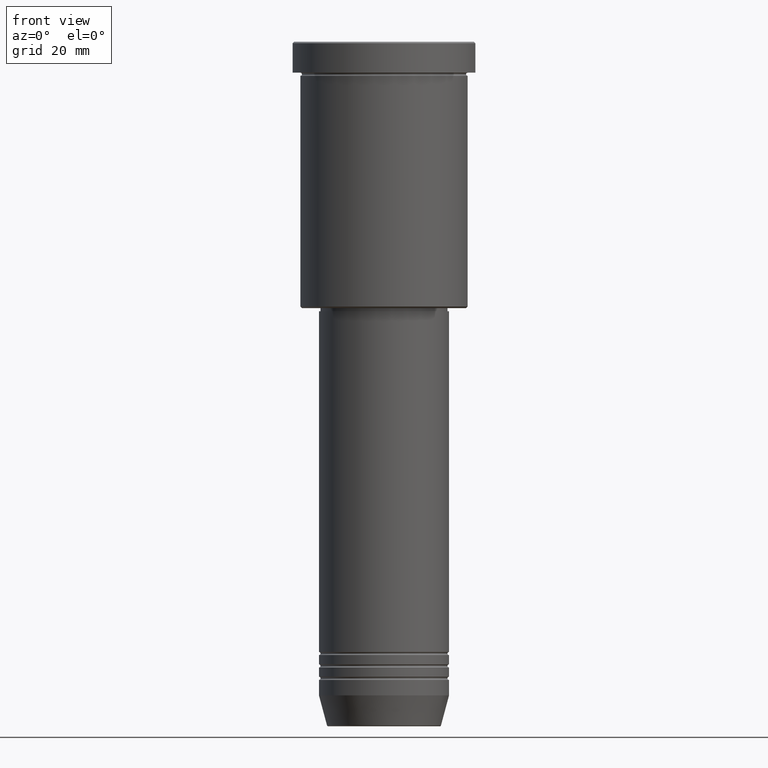
[diagram: clean part render]
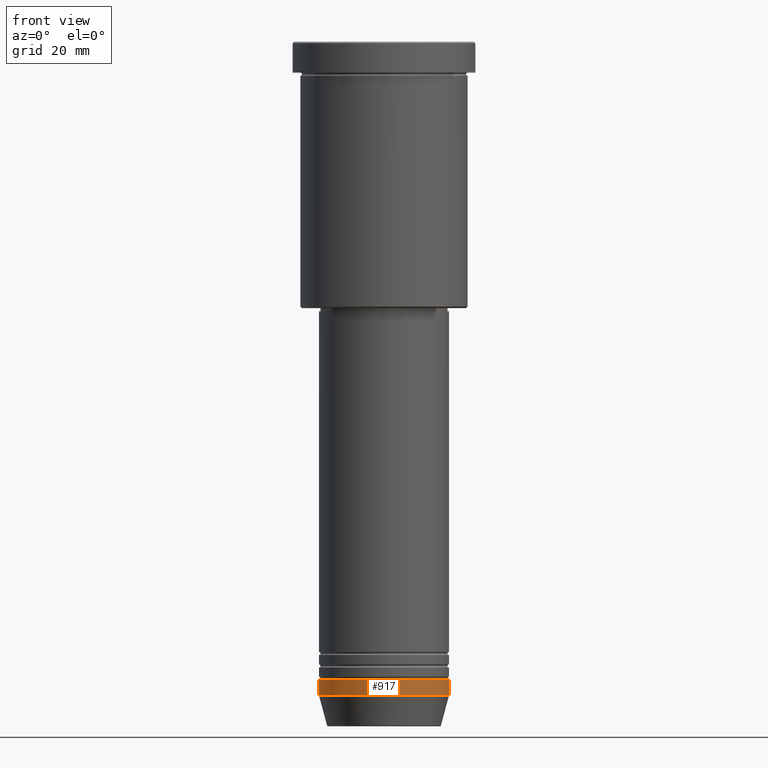
[diagram: same view with one face highlighted and labeled with its STEP entity id]
A machine part, front view. The second image highlights one B-rep face of the part: STEP entity #917.
In plain terms, the highlighted cylindrical surface (partial cylindrical patch) has radius 21 mm, axis along (-0, -0, 1).
Its self-contained STEP definition (entity closure, byte-faithful):
#4 = EDGE_CURVE ( 'NONE', #394, #1166, #573, .T. ) ;
#39 = FACE_OUTER_BOUND ( 'NONE', #889, .T. ) ;
#55 = LINE ( 'NONE', #331, #1141 ) ;
#123 = DIRECTION ( 'NONE',  ( 1.000000000000000000, 0.000000000000000000, 0.000000000000000000 ) ) ;
#126 = DIRECTION ( 'NONE',  ( -0.000000000000000000, -0.000000000000000000, 1.000000000000000000 ) ) ;
#184 = DIRECTION ( 'NONE',  ( -0.000000000000000000, -0.000000000000000000, 1.000000000000000000 ) ) ;
#195 = DIRECTION ( 'NONE',  ( -0.000000000000000000, -0.000000000000000000, 1.000000000000000000 ) ) ;
#269 = ORIENTED_EDGE ( 'NONE', *, *, #4, .F. ) ;
#287 = CARTESIAN_POINT ( 'NONE',  ( 0.000000000000000000, 0.000000000000000000, -206.0000000000000568 ) ) ;
#331 = CARTESIAN_POINT ( 'NONE',  ( 21.00000000000000000, 0.000000000000000000, 0.000000000000000000 ) ) ;
#335 = VERTEX_POINT ( 'NONE', #998 ) ;
#388 = VECTOR ( 'NONE', #126, 1000.000000000000000 ) ;
#394 = VERTEX_POINT ( 'NONE', #934 ) ;
#411 = CARTESIAN_POINT ( 'NONE',  ( -21.00000000000000000, 2.571758278209441661E-15, -206.0000000000000568 ) ) ;
#488 = CIRCLE ( 'NONE', #641, 21.00000000000000000 ) ;
#489 = AXIS2_PLACEMENT_3D ( 'NONE', #287, #195, #123 ) ;
#552 = EDGE_CURVE ( 'NONE', #335, #1025, #55, .T. ) ;
#568 = CARTESIAN_POINT ( 'NONE',  ( -21.00000000000000000, 2.571758278209441661E-15, 0.000000000000000000 ) ) ;
#573 = LINE ( 'NONE', #568, #388 ) ;
#588 = ORIENTED_EDGE ( 'NONE', *, *, #794, .T. ) ;
#600 = CARTESIAN_POINT ( 'NONE',  ( 21.00000000000000000, 0.000000000000000000, -206.0000000000000568 ) ) ;
#641 = AXIS2_PLACEMENT_3D ( 'NONE', #1014, #184, #1171 ) ;
#658 = CYLINDRICAL_SURFACE ( 'NONE', #1081, 21.00000000000000000 ) ;
#738 = CIRCLE ( 'NONE', #489, 21.00000000000000000 ) ;
#790 = DIRECTION ( 'NONE',  ( -0.000000000000000000, -0.000000000000000000, 1.000000000000000000 ) ) ;
#794 = EDGE_CURVE ( 'NONE', #394, #335, #488, .T. ) ;
#874 = ORIENTED_EDGE ( 'NONE', *, *, #552, .T. ) ;
#889 = EDGE_LOOP ( 'NONE', ( #269, #588, #874, #1127 ) ) ;
#915 = EDGE_CURVE ( 'NONE', #1166, #1025, #738, .T. ) ;
#917 = ADVANCED_FACE ( 'NONE', ( #39 ), #658, .T. ) ;
#934 = CARTESIAN_POINT ( 'NONE',  ( -21.00000000000000000, 2.571758278209441661E-15, -211.0000000000000284 ) ) ;
#998 = CARTESIAN_POINT ( 'NONE',  ( 21.00000000000000000, 0.000000000000000000, -211.0000000000000284 ) ) ;
#1014 = CARTESIAN_POINT ( 'NONE',  ( 0.000000000000000000, 0.000000000000000000, -211.0000000000000284 ) ) ;
#1025 = VERTEX_POINT ( 'NONE', #600 ) ;
#1045 = DIRECTION ( 'NONE',  ( 1.000000000000000000, 0.000000000000000000, 0.000000000000000000 ) ) ;
#1081 = AXIS2_PLACEMENT_3D ( 'NONE', #1121, #1134, #1045 ) ;
#1121 = CARTESIAN_POINT ( 'NONE',  ( 0.000000000000000000, 0.000000000000000000, 0.000000000000000000 ) ) ;
#1127 = ORIENTED_EDGE ( 'NONE', *, *, #915, .F. ) ;
#1134 = DIRECTION ( 'NONE',  ( -0.000000000000000000, -0.000000000000000000, 1.000000000000000000 ) ) ;
#1141 = VECTOR ( 'NONE', #790, 1000.000000000000000 ) ;
#1166 = VERTEX_POINT ( 'NONE', #411 ) ;
#1171 = DIRECTION ( 'NONE',  ( 1.000000000000000000, 0.000000000000000000, 0.000000000000000000 ) ) ;